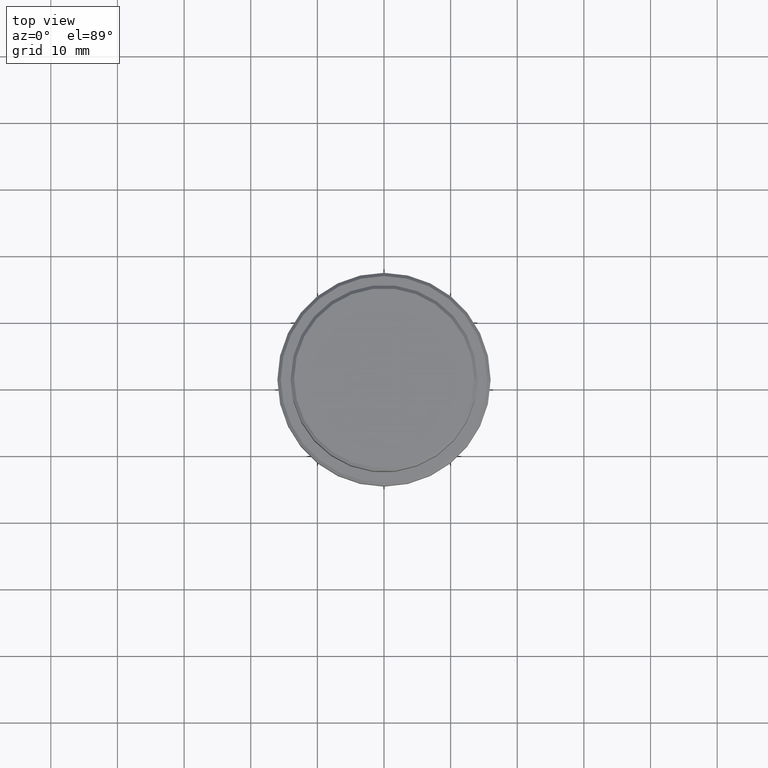
[diagram: clean part render]
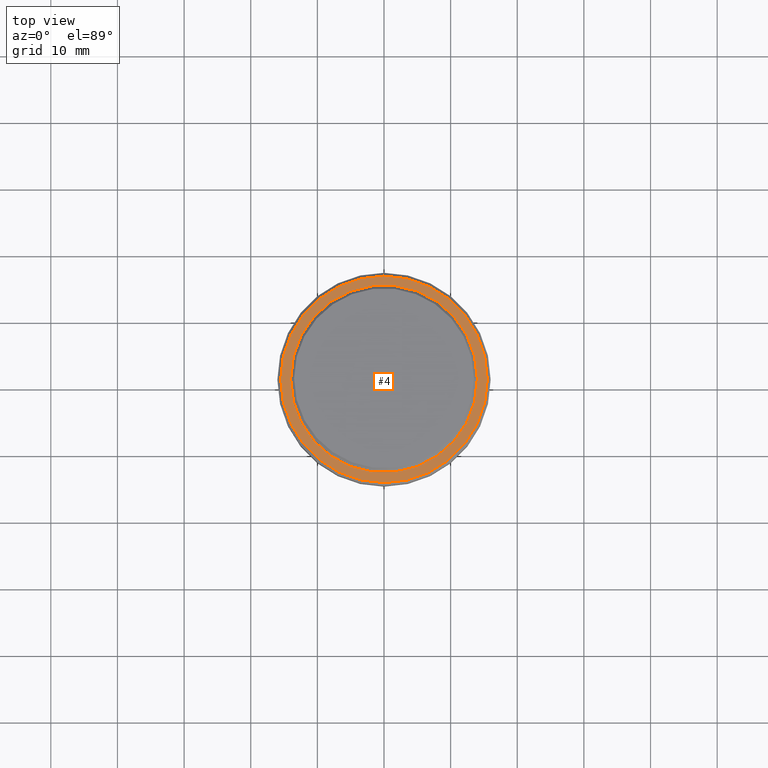
[diagram: same view with one face highlighted and labeled with its STEP entity id]
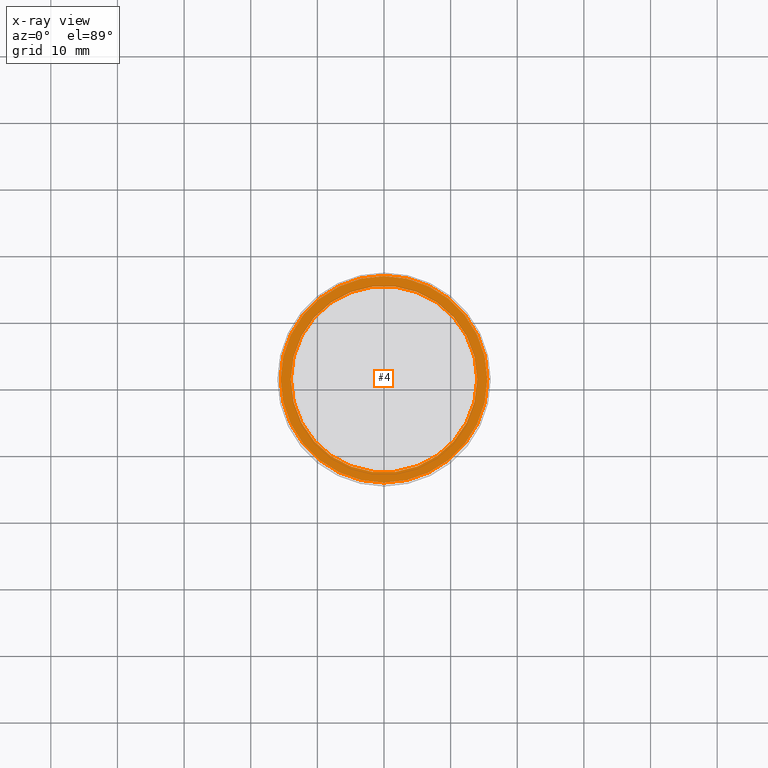
[diagram: x-ray of the same camera — body ghosted, the highlighted face saturated]
A machine part, top view. The second image highlights one B-rep face of the part: STEP entity #4.
The next image is the same camera in x-ray: the body ghosted, the highlighted face saturated — about 0% of this face is hidden behind the body in this view.
In plain terms, the highlighted planar face has unit normal (0, -0, 1).
Its self-contained STEP definition (entity closure, byte-faithful):
#4 = ADVANCED_FACE ( 'NONE', ( #941, #1394 ), #96, .T. ) ;
#96 = PLANE ( 'NONE',  #502 ) ;
#278 = EDGE_CURVE ( 'NONE', #697, #603, #393, .T. ) ;
#292 = CARTESIAN_POINT ( 'NONE',  ( 15.50000000000001421, 1.928818708657081739E-15, -10.00000000000000178 ) ) ;
#305 = ORIENTED_EDGE ( 'NONE', *, *, #1070, .T. ) ;
#316 = DIRECTION ( 'NONE',  ( -0.000000000000000000, -0.000000000000000000, 1.000000000000000000 ) ) ;
#353 = CARTESIAN_POINT ( 'NONE',  ( 13.99999999999998757, 0.000000000000000000, -10.00000000000000178 ) ) ;
#393 = CIRCLE ( 'NONE', #1059, 15.50000000000001421 ) ;
#423 = EDGE_LOOP ( 'NONE', ( #1330, #857 ) ) ;
#434 = CIRCLE ( 'NONE', #598, 13.99999999999998757 ) ;
#486 = CARTESIAN_POINT ( 'NONE',  ( 0.000000000000000000, 0.000000000000000000, -10.00000000000000178 ) ) ;
#502 = AXIS2_PLACEMENT_3D ( 'NONE', #1405, #746, #645 ) ;
#598 = AXIS2_PLACEMENT_3D ( 'NONE', #486, #920, #1364 ) ;
#603 = VERTEX_POINT ( 'NONE', #928 ) ;
#641 = CARTESIAN_POINT ( 'NONE',  ( -13.99999999999998757, 1.714505518806293060E-15, -10.00000000000000178 ) ) ;
#645 = DIRECTION ( 'NONE',  ( 1.000000000000000000, 0.000000000000000000, 0.000000000000000000 ) ) ;
#647 = EDGE_CURVE ( 'NONE', #1198, #957, #727, .T. ) ;
#696 = DIRECTION ( 'NONE',  ( 1.000000000000000000, 0.000000000000000000, 0.000000000000000000 ) ) ;
#697 = VERTEX_POINT ( 'NONE', #292 ) ;
#727 = CIRCLE ( 'NONE', #845, 13.99999999999998757 ) ;
#746 = DIRECTION ( 'NONE',  ( 0.000000000000000000, -0.000000000000000000, 1.000000000000000000 ) ) ;
#748 = DIRECTION ( 'NONE',  ( 1.000000000000000000, 0.000000000000000000, 0.000000000000000000 ) ) ;
#763 = CARTESIAN_POINT ( 'NONE',  ( 0.000000000000000000, 0.000000000000000000, -10.00000000000000178 ) ) ;
#766 = ORIENTED_EDGE ( 'NONE', *, *, #647, .T. ) ;
#815 = CARTESIAN_POINT ( 'NONE',  ( 0.000000000000000000, 0.000000000000000000, -10.00000000000000178 ) ) ;
#824 = AXIS2_PLACEMENT_3D ( 'NONE', #859, #316, #1000 ) ;
#845 = AXIS2_PLACEMENT_3D ( 'NONE', #815, #921, #696 ) ;
#857 = ORIENTED_EDGE ( 'NONE', *, *, #278, .T. ) ;
#859 = CARTESIAN_POINT ( 'NONE',  ( 0.000000000000000000, 0.000000000000000000, -10.00000000000000178 ) ) ;
#920 = DIRECTION ( 'NONE',  ( 0.000000000000000000, 0.000000000000000000, -1.000000000000000000 ) ) ;
#921 = DIRECTION ( 'NONE',  ( 0.000000000000000000, 0.000000000000000000, -1.000000000000000000 ) ) ;
#928 = CARTESIAN_POINT ( 'NONE',  ( -15.50000000000001421, 0.000000000000000000, -10.00000000000000178 ) ) ;
#941 = FACE_OUTER_BOUND ( 'NONE', #423, .T. ) ;
#957 = VERTEX_POINT ( 'NONE', #353 ) ;
#1000 = DIRECTION ( 'NONE',  ( 1.000000000000000000, 0.000000000000000000, 0.000000000000000000 ) ) ;
#1059 = AXIS2_PLACEMENT_3D ( 'NONE', #763, #1288, #748 ) ;
#1070 = EDGE_CURVE ( 'NONE', #957, #1198, #434, .T. ) ;
#1188 = EDGE_LOOP ( 'NONE', ( #305, #766 ) ) ;
#1198 = VERTEX_POINT ( 'NONE', #641 ) ;
#1233 = EDGE_CURVE ( 'NONE', #603, #697, #1303, .T. ) ;
#1288 = DIRECTION ( 'NONE',  ( -0.000000000000000000, -0.000000000000000000, 1.000000000000000000 ) ) ;
#1303 = CIRCLE ( 'NONE', #824, 15.50000000000001421 ) ;
#1330 = ORIENTED_EDGE ( 'NONE', *, *, #1233, .T. ) ;
#1364 = DIRECTION ( 'NONE',  ( 1.000000000000000000, 0.000000000000000000, 0.000000000000000000 ) ) ;
#1394 = FACE_BOUND ( 'NONE', #1188, .T. ) ;
#1405 = CARTESIAN_POINT ( 'NONE',  ( 0.000000000000000000, 13.49999999999998757, -10.00000000000000178 ) ) ;